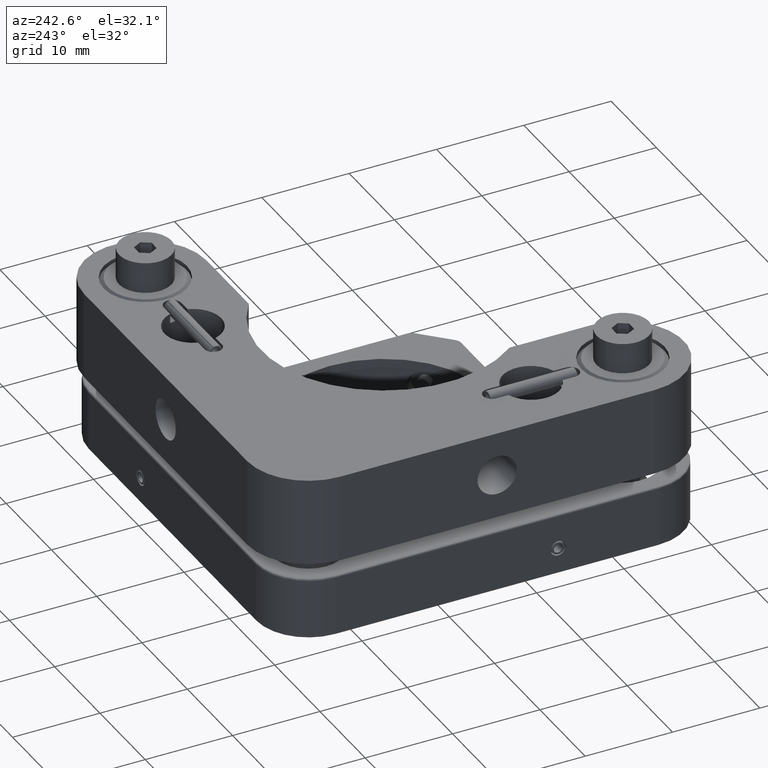
[diagram: clean part render]
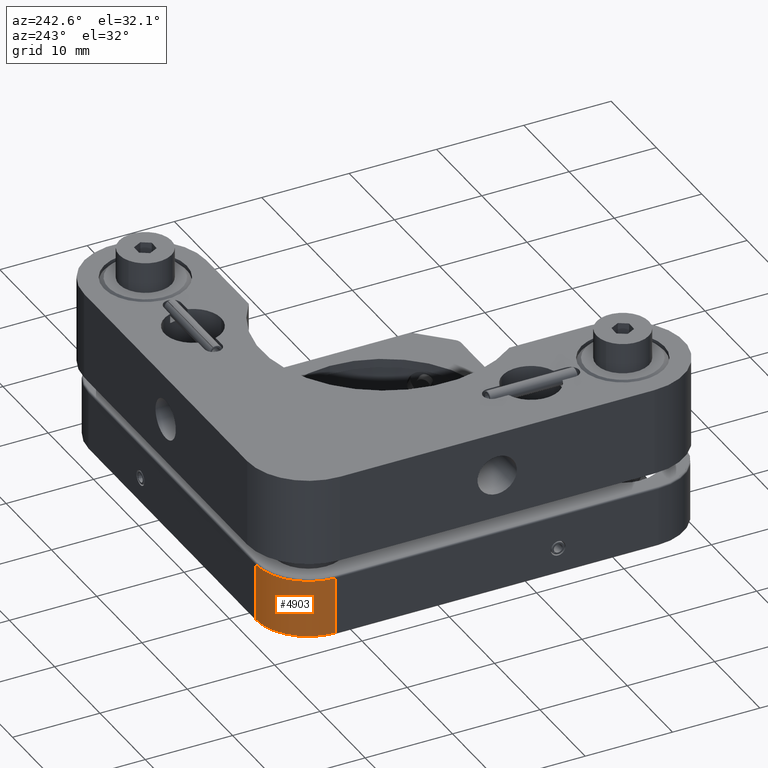
[diagram: same view with one face highlighted and labeled with its STEP entity id]
A machine part, auxiliary view. The second image highlights one B-rep face of the part: STEP entity #4903.
In plain terms, the highlighted cylindrical surface (partial cylindrical patch) has radius 6 mm, axis along (-0, -0, -1).
Its self-contained STEP definition (entity closure, byte-faithful):
#15 = EDGE_CURVE ( 'NONE', #981, #4017, #5274, .T. ) ;
#30 = ORIENTED_EDGE ( 'NONE', *, *, #15, .T. ) ;
#243 = VECTOR ( 'NONE', #3763, 1000.000000000000000 ) ;
#245 = EDGE_CURVE ( 'NONE', #3856, #981, #3275, .T. ) ;
#282 = CARTESIAN_POINT ( 'NONE',  ( 6.732450387463373431, 52.65705741463438017, 28.78193547686142040 ) ) ;
#404 = LINE ( 'NONE', #4956, #5045 ) ;
#782 = AXIS2_PLACEMENT_3D ( 'NONE', #3561, #5213, #3588 ) ;
#817 = CARTESIAN_POINT ( 'NONE',  ( 6.732450387463352115, 58.65705741463438017, 28.98193547686141969 ) ) ;
#818 = CARTESIAN_POINT ( 'NONE',  ( 0.7324503874633729872, 52.65705741463438017, 28.78193547686142040 ) ) ;
#981 = VERTEX_POINT ( 'NONE', #5295 ) ;
#1132 = ORIENTED_EDGE ( 'NONE', *, *, #2566, .F. ) ;
#1227 = CARTESIAN_POINT ( 'NONE',  ( 0.7324503874633729872, 52.65705741463438017, 22.18193547686141898 ) ) ;
#1287 = CYLINDRICAL_SURFACE ( 'NONE', #3266, 6.000000000000000000 ) ;
#1336 = EDGE_CURVE ( 'NONE', #3698, #3856, #5283, .T. ) ;
#1916 = AXIS2_PLACEMENT_3D ( 'NONE', #282, #5104, #3091 ) ;
#2417 = ORIENTED_EDGE ( 'NONE', *, *, #245, .T. ) ;
#2566 = EDGE_CURVE ( 'NONE', #3698, #4017, #404, .T. ) ;
#2613 = ORIENTED_EDGE ( 'NONE', *, *, #1336, .T. ) ;
#2928 = CARTESIAN_POINT ( 'NONE',  ( 6.732450387463373431, 52.65705741463438017, 28.98193547686141969 ) ) ;
#2953 = CARTESIAN_POINT ( 'NONE',  ( 6.732450387463352115, 58.65705741463438017, 28.78193547686142040 ) ) ;
#3091 = DIRECTION ( 'NONE',  ( -1.000000000000000000, 0.000000000000000000, 0.000000000000000000 ) ) ;
#3266 = AXIS2_PLACEMENT_3D ( 'NONE', #2928, #4094, #3686 ) ;
#3275 = LINE ( 'NONE', #817, #243 ) ;
#3561 = CARTESIAN_POINT ( 'NONE',  ( 6.732450387463373431, 52.65705741463438017, 22.18193547686141898 ) ) ;
#3588 = DIRECTION ( 'NONE',  ( -1.000000000000000000, 0.000000000000000000, 0.000000000000000000 ) ) ;
#3686 = DIRECTION ( 'NONE',  ( -1.000000000000000000, 0.000000000000000000, 0.000000000000000000 ) ) ;
#3698 = VERTEX_POINT ( 'NONE', #818 ) ;
#3736 = DIRECTION ( 'NONE',  ( -0.000000000000000000, -0.000000000000000000, -1.000000000000000000 ) ) ;
#3763 = DIRECTION ( 'NONE',  ( -0.000000000000000000, -0.000000000000000000, -1.000000000000000000 ) ) ;
#3856 = VERTEX_POINT ( 'NONE', #2953 ) ;
#4017 = VERTEX_POINT ( 'NONE', #1227 ) ;
#4094 = DIRECTION ( 'NONE',  ( -0.000000000000000000, -0.000000000000000000, -1.000000000000000000 ) ) ;
#4373 = EDGE_LOOP ( 'NONE', ( #2417, #30, #1132, #2613 ) ) ;
#4903 = ADVANCED_FACE ( 'NONE', ( #4989 ), #1287, .T. ) ;
#4956 = CARTESIAN_POINT ( 'NONE',  ( 0.7324503874633729872, 52.65705741463438017, 28.98193547686141969 ) ) ;
#4989 = FACE_OUTER_BOUND ( 'NONE', #4373, .T. ) ;
#5045 = VECTOR ( 'NONE', #3736, 1000.000000000000000 ) ;
#5104 = DIRECTION ( 'NONE',  ( -0.000000000000000000, -0.000000000000000000, -1.000000000000000000 ) ) ;
#5213 = DIRECTION ( 'NONE',  ( 0.000000000000000000, 0.000000000000000000, 1.000000000000000000 ) ) ;
#5274 = CIRCLE ( 'NONE', #782, 6.000000000000000000 ) ;
#5283 = CIRCLE ( 'NONE', #1916, 6.000000000000000000 ) ;
#5295 = CARTESIAN_POINT ( 'NONE',  ( 6.732450387463352115, 58.65705741463438017, 22.18193547686141898 ) ) ;